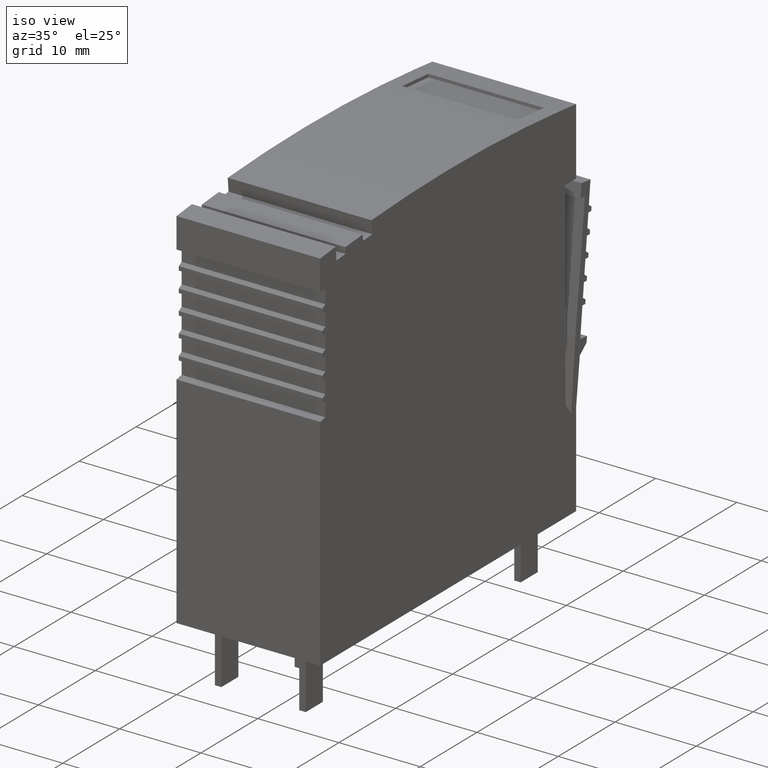
[diagram: clean part render]
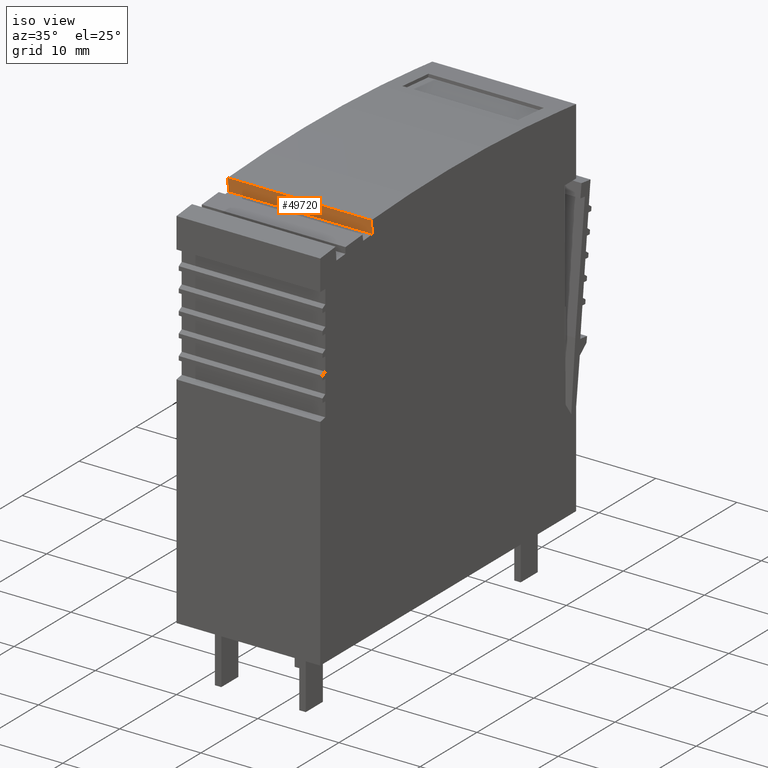
[diagram: same view with one face highlighted and labeled with its STEP entity id]
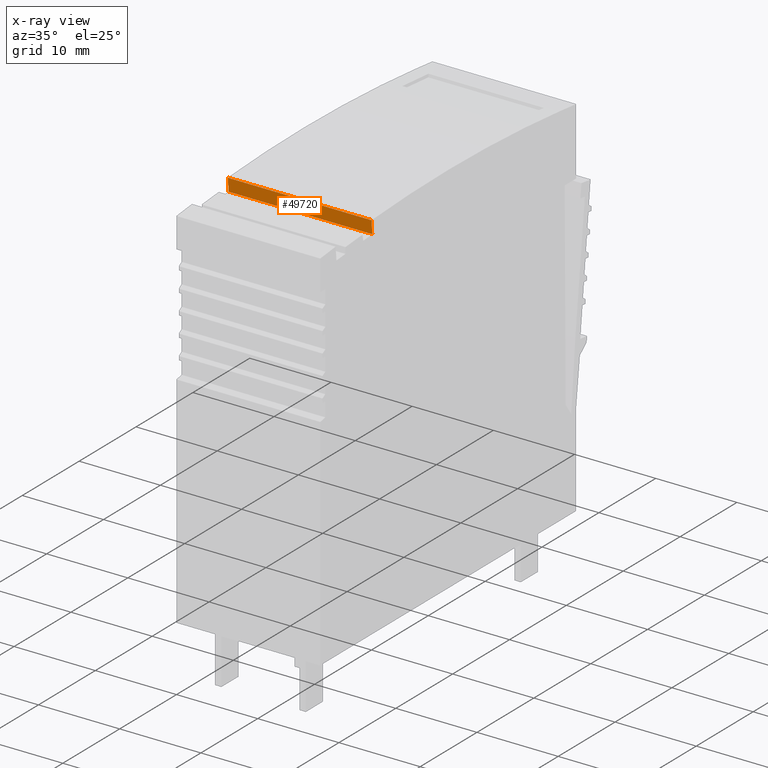
[diagram: x-ray of the same camera — body ghosted, the highlighted face saturated]
A machine part, iso view. The second image highlights one B-rep face of the part: STEP entity #49720.
The next image is the same camera in x-ray: the body ghosted, the highlighted face saturated — about 0% of this face is hidden behind the body in this view.
In plain terms, the highlighted planar face has unit normal (0, 0.9965, 0.0832).
Its self-contained STEP definition (entity closure, byte-faithful):
#4160=CARTESIAN_POINT('',(172.658757916203,93.3798558695601,
-0.100000006973728));
#4170=VERTEX_POINT('',#4160);
#4200=CARTESIAN_POINT('',(167.273254812876,28.860123,-0.100000006500225)
);
#4210=DIRECTION('',(0.0831813617632818,0.996534425424032,
-7.31345672924974E-12));
#4220=VECTOR('',#4210,1.);
#4230=LINE('',#4200,#4220);
#4240=CARTESIAN_POINT('',(172.525254561783,91.7804508373583,
-0.10000000696199));
#4250=VERTEX_POINT('',#4240);
#4260=EDGE_CURVE('',#4250,#4170,#4230,.T.);
#10760=CARTESIAN_POINT('',(172.525254561788,91.7804508374246,
-17.8000000077146));
#10770=VERTEX_POINT('',#10760);
#10800=CARTESIAN_POINT('',(167.273254812841,28.860123,-17.8000000061708)
);
#10810=DIRECTION('',(-0.0831813617632818,-0.996534425424032,
7.31345672924974E-12));
#10820=VECTOR('',#10810,1.);
#10830=LINE('',#10800,#10820);
#10840=CARTESIAN_POINT('',(172.658757916196,93.3798558694818,
-17.8000000077204));
#10850=VERTEX_POINT('',#10840);
#10860=EDGE_CURVE('',#10850,#10770,#10830,.T.);
#49390=CARTESIAN_POINT('',(172.658757916199,93.3798558695121,
-10.9500000066802));
#49400=DIRECTION('',(3.69150614401365E-13,4.42199275859419E-12,1.));
#49410=VECTOR('',#49400,1.);
#49420=LINE('',#49390,#49410);
#49430=EDGE_CURVE('',#10850,#4170,#49420,.T.);
#49560=CARTESIAN_POINT('',(172.60358234392,92.7188381120185,
1.24999999304904));
#49570=DIRECTION('',(-0.996534425424032,0.0831813617632818,
4.39160501576142E-17));
#49580=DIRECTION('',(0.0831813617632818,0.996534425424032,
-3.66570061391631E-18));
#49590=AXIS2_PLACEMENT_3D('',#49560,#49570,#49580);
#49600=PLANE('',#49590);
#49610=ORIENTED_EDGE('',*,*,#49430,.T.);
#49620=ORIENTED_EDGE('',*,*,#10860,.F.);
#49630=CARTESIAN_POINT('',(172.525254561788,91.7804508374246,
-10.9500000066744));
#49640=DIRECTION('',(4.40687737796189E-17,3.23118227099968E-27,1.));
#49650=VECTOR('',#49640,1.);
#49660=LINE('',#49630,#49650);
#49670=EDGE_CURVE('',#10770,#4250,#49660,.T.);
#49680=ORIENTED_EDGE('',*,*,#49670,.F.);
#49690=ORIENTED_EDGE('',*,*,#4260,.F.);
#49700=EDGE_LOOP('',(#49690,#49680,#49620,#49610));
#49710=FACE_OUTER_BOUND('',#49700,.T.);
#49720=ADVANCED_FACE('',(#49710),#49600,.F.);